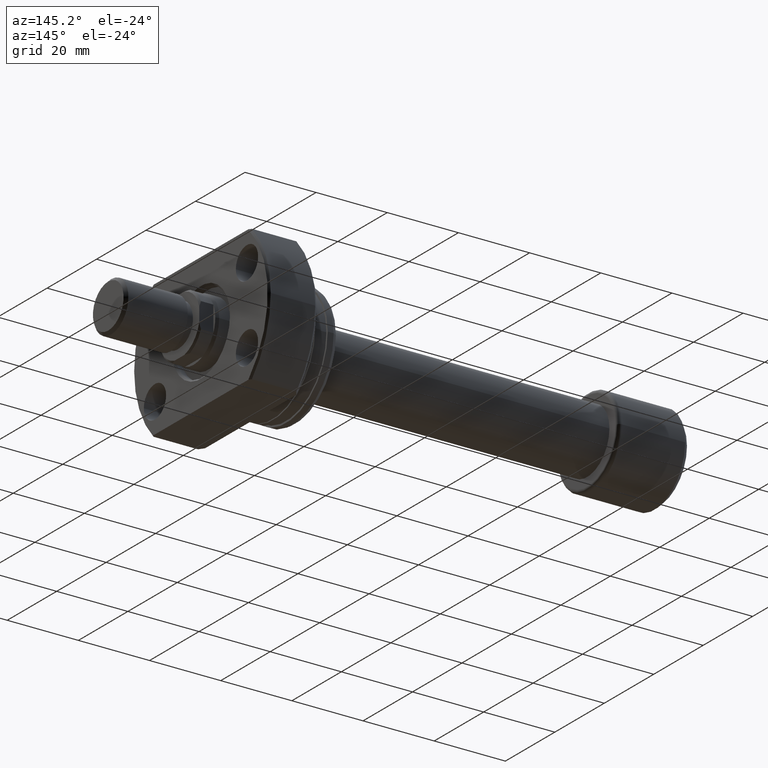
[diagram: clean part render]
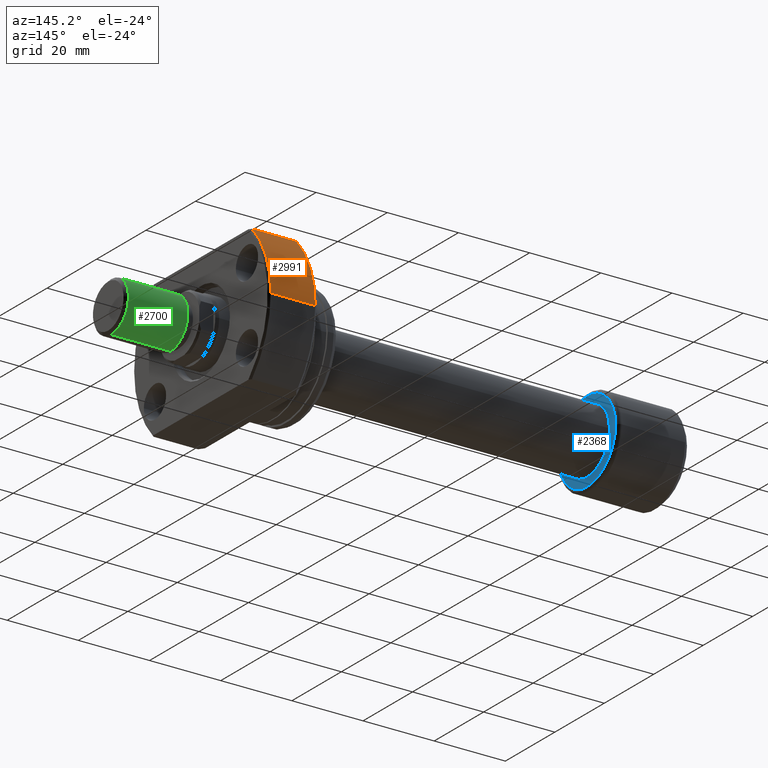
[diagram: same view with three faces highlighted in distinct colors, each labeled with its STEP entity id]
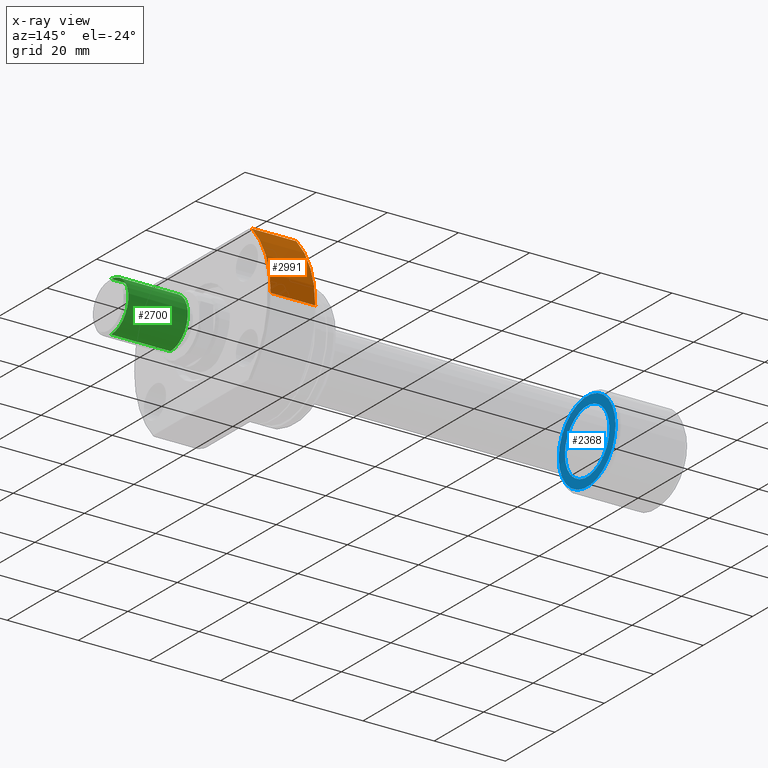
[diagram: x-ray of the same camera — body ghosted, the three highlighted faces saturated]
A machine part, auxiliary view with three faces highlighted in distinct colors.
The next image is the same camera in x-ray (body ghosted, the three faces saturated) — at least one of them is partly hidden behind the body in this view.
Their STEP definitions:

[orange] entity #2991 — the highlighted cylindrical surface (partial cylindrical patch) has radius 27.5 mm, axis along (1, 0, 0).
#273 = EDGE_CURVE ( 'NONE', #625, #2691, #2290, .T. ) ;
#366 = DIRECTION ( 'NONE',  ( 1.000000000000000000, 9.242617352055502386E-18, -0.000000000000000000 ) ) ;
#371 = ORIENTED_EDGE ( 'NONE', *, *, #3605, .F. ) ;
#441 = CARTESIAN_POINT ( 'NONE',  ( 26.50000000000000711, 27.49999999999991473, 0.000000000000000000 ) ) ;
#454 = CARTESIAN_POINT ( 'NONE',  ( 26.00000000000008882, 27.49999999999991473, 0.000000000000000000 ) ) ;
#600 = DIRECTION ( 'NONE',  ( 0.000000000000000000, 1.000000000000000000, 0.000000000000000000 ) ) ;
#625 = VERTEX_POINT ( 'NONE', #2187 ) ;
#673 = CARTESIAN_POINT ( 'NONE',  ( 26.00000000000008882, 2.403080511534438786E-16, 0.000000000000000000 ) ) ;
#798 = CIRCLE ( 'NONE', #1699, 27.49999999999991473 ) ;
#823 = CYLINDRICAL_SURFACE ( 'NONE', #2584, 27.49999999999991473 ) ;
#861 = CARTESIAN_POINT ( 'NONE',  ( 13.49999999999999112, 1.247753342527491952E-16, 0.000000000000000000 ) ) ;
#967 = DIRECTION ( 'NONE',  ( 0.000000000000000000, 1.000000000000000000, 0.000000000000000000 ) ) ;
#1189 = ORIENTED_EDGE ( 'NONE', *, *, #3309, .T. ) ;
#1293 = LINE ( 'NONE', #441, #1398 ) ;
#1398 = VECTOR ( 'NONE', #2111, 1000.000000000000000 ) ;
#1444 = DIRECTION ( 'NONE',  ( 0.000000000000000000, 1.000000000000000000, 0.000000000000000000 ) ) ;
#1490 = VERTEX_POINT ( 'NONE', #2002 ) ;
#1605 = ORIENTED_EDGE ( 'NONE', *, *, #273, .T. ) ;
#1699 = AXIS2_PLACEMENT_3D ( 'NONE', #673, #2146, #967 ) ;
#1715 = FACE_OUTER_BOUND ( 'NONE', #2116, .T. ) ;
#1838 = CARTESIAN_POINT ( 'NONE',  ( 13.49999999999998757, 19.88089535207129188, 19.00000000000000355 ) ) ;
#1917 = ORIENTED_EDGE ( 'NONE', *, *, #2677, .F. ) ;
#2002 = CARTESIAN_POINT ( 'NONE',  ( 26.00000000000007461, 19.88089535207092950, 19.00000000000000355 ) ) ;
#2111 = DIRECTION ( 'NONE',  ( 1.000000000000000000, 9.242617352055502386E-18, -0.000000000000000000 ) ) ;
#2116 = EDGE_LOOP ( 'NONE', ( #371, #1605, #1189, #1917 ) ) ;
#2146 = DIRECTION ( 'NONE',  ( 1.000000000000000000, 9.242617352055502386E-18, -0.000000000000000000 ) ) ;
#2172 = VECTOR ( 'NONE', #3343, 1000.000000000000000 ) ;
#2187 = CARTESIAN_POINT ( 'NONE',  ( 13.49999999999999112, 27.49999999999991473, 0.000000000000000000 ) ) ;
#2197 = CARTESIAN_POINT ( 'NONE',  ( -2.151057110211240797E-13, 19.88089535207167913, 19.00000000000000355 ) ) ;
#2283 = CARTESIAN_POINT ( 'NONE',  ( 26.50000000000000711, 2.449293598294708880E-16, 0.000000000000000000 ) ) ;
#2290 = CIRCLE ( 'NONE', #2537, 27.49999999999991473 ) ;
#2537 = AXIS2_PLACEMENT_3D ( 'NONE', #861, #366, #600 ) ;
#2584 = AXIS2_PLACEMENT_3D ( 'NONE', #2283, #2821, #1444 ) ;
#2677 = EDGE_CURVE ( 'NONE', #2857, #1490, #798, .T. ) ;
#2691 = VERTEX_POINT ( 'NONE', #1838 ) ;
#2821 = DIRECTION ( 'NONE',  ( 1.000000000000000000, 9.242617352055502386E-18, -0.000000000000000000 ) ) ;
#2857 = VERTEX_POINT ( 'NONE', #454 ) ;
#2991 = ADVANCED_FACE ( 'NONE', ( #1715 ), #823, .T. ) ;
#3309 = EDGE_CURVE ( 'NONE', #2691, #1490, #3325, .T. ) ;
#3325 = LINE ( 'NONE', #2197, #2172 ) ;
#3343 = DIRECTION ( 'NONE',  ( 1.000000000000000000, -2.886466111666351885E-14, -0.000000000000000000 ) ) ;
#3605 = EDGE_CURVE ( 'NONE', #625, #2857, #1293, .T. ) ;

[blue] entity #2368 — the highlighted planar face has unit normal (-1, -0, 0).
#307 = CARTESIAN_POINT ( 'NONE',  ( 20.39999999999999503, 11.50000000000000000, 1.469576158976823947E-15 ) ) ;
#331 = AXIS2_PLACEMENT_3D ( 'NONE', #2406, #3274, #715 ) ;
#333 = CIRCLE ( 'NONE', #1998, 9.000000000000000000 ) ;
#438 = EDGE_CURVE ( 'NONE', #3619, #2731, #333, .T. ) ;
#581 = DIRECTION ( 'NONE',  ( 0.000000000000000000, -1.000000000000000000, 0.000000000000000000 ) ) ;
#642 = CARTESIAN_POINT ( 'NONE',  ( 20.39999999999999503, 2.181866337020893623E-16, 0.000000000000000000 ) ) ;
#665 = ORIENTED_EDGE ( 'NONE', *, *, #2094, .F. ) ;
#715 = DIRECTION ( 'NONE',  ( 1.069542322069065801E-17, -1.000000000000000000, 0.000000000000000000 ) ) ;
#778 = ORIENTED_EDGE ( 'NONE', *, *, #2856, .T. ) ;
#856 = DIRECTION ( 'NONE',  ( -1.000000000000000000, -1.069542322069065801E-17, -0.000000000000000000 ) ) ;
#1160 = CIRCLE ( 'NONE', #1813, 11.50000000000000000 ) ;
#1264 = CARTESIAN_POINT ( 'NONE',  ( 20.39999999999999503, 9.000000000000000000, 1.102182119232623630E-15 ) ) ;
#1266 = PLANE ( 'NONE',  #331 ) ;
#1307 = FACE_BOUND ( 'NONE', #1846, .T. ) ;
#1346 = CARTESIAN_POINT ( 'NONE',  ( 20.39999999999999503, 2.181866337020893623E-16, 0.000000000000000000 ) ) ;
#1364 = DIRECTION ( 'NONE',  ( -1.000000000000000000, -1.069542322069065801E-17, -0.000000000000000000 ) ) ;
#1425 = ORIENTED_EDGE ( 'NONE', *, *, #438, .T. ) ;
#1501 = EDGE_LOOP ( 'NONE', ( #1665, #665 ) ) ;
#1552 = FACE_OUTER_BOUND ( 'NONE', #1501, .T. ) ;
#1665 = ORIENTED_EDGE ( 'NONE', *, *, #2625, .F. ) ;
#1714 = VERTEX_POINT ( 'NONE', #2606 ) ;
#1813 = AXIS2_PLACEMENT_3D ( 'NONE', #2848, #856, #3140 ) ;
#1846 = EDGE_LOOP ( 'NONE', ( #1425, #778 ) ) ;
#1873 = CARTESIAN_POINT ( 'NONE',  ( 20.39999999999999503, 2.181866337020893623E-16, 0.000000000000000000 ) ) ;
#1922 = DIRECTION ( 'NONE',  ( 0.000000000000000000, -1.000000000000000000, 0.000000000000000000 ) ) ;
#1940 = AXIS2_PLACEMENT_3D ( 'NONE', #642, #3442, #581 ) ;
#1998 = AXIS2_PLACEMENT_3D ( 'NONE', #1873, #2684, #3013 ) ;
#2094 = EDGE_CURVE ( 'NONE', #3599, #1714, #3076, .T. ) ;
#2165 = CARTESIAN_POINT ( 'NONE',  ( 20.39999999999999503, -9.000000000000000000, 0.000000000000000000 ) ) ;
#2368 = ADVANCED_FACE ( 'NONE', ( #1552, #1307 ), #1266, .F. ) ;
#2406 = CARTESIAN_POINT ( 'NONE',  ( 20.39999999999999503, -9.000000000000000000, 0.000000000000000000 ) ) ;
#2606 = CARTESIAN_POINT ( 'NONE',  ( 20.39999999999999503, -11.50000000000000000, 0.000000000000000000 ) ) ;
#2625 = EDGE_CURVE ( 'NONE', #1714, #3599, #1160, .T. ) ;
#2684 = DIRECTION ( 'NONE',  ( -1.000000000000000000, -1.069542322069065801E-17, -0.000000000000000000 ) ) ;
#2731 = VERTEX_POINT ( 'NONE', #1264 ) ;
#2848 = CARTESIAN_POINT ( 'NONE',  ( 20.39999999999999503, 2.181866337020893623E-16, 0.000000000000000000 ) ) ;
#2856 = EDGE_CURVE ( 'NONE', #2731, #3619, #2890, .T. ) ;
#2890 = CIRCLE ( 'NONE', #3009, 9.000000000000000000 ) ;
#3009 = AXIS2_PLACEMENT_3D ( 'NONE', #1346, #1364, #1922 ) ;
#3013 = DIRECTION ( 'NONE',  ( 0.000000000000000000, -1.000000000000000000, 0.000000000000000000 ) ) ;
#3076 = CIRCLE ( 'NONE', #1940, 11.50000000000000000 ) ;
#3140 = DIRECTION ( 'NONE',  ( 0.000000000000000000, -1.000000000000000000, 0.000000000000000000 ) ) ;
#3274 = DIRECTION ( 'NONE',  ( -1.000000000000000000, -1.069542322069065801E-17, 0.000000000000000000 ) ) ;
#3442 = DIRECTION ( 'NONE',  ( -1.000000000000000000, -1.069542322069065801E-17, -0.000000000000000000 ) ) ;
#3599 = VERTEX_POINT ( 'NONE', #307 ) ;
#3619 = VERTEX_POINT ( 'NONE', #2165 ) ;

[green] entity #2700 — the highlighted cylindrical surface (edge-blend (fillet) strip) has radius 7 mm, axis along (1, 0, -0).
#6 = EDGE_LOOP ( 'NONE', ( #1888, #2841, #2802, #2615 ) ) ;
#70 = CARTESIAN_POINT ( 'NONE',  ( 0.000000000000000000, 0.000000000000000000, 17.50000000000000000 ) ) ;
#115 = EDGE_CURVE ( 'NONE', #502, #2447, #1686, .T. ) ;
#252 = CARTESIAN_POINT ( 'NONE',  ( 7.000000000000000000, 8.572527594031473190E-16, 17.50000000000000000 ) ) ;
#376 = VERTEX_POINT ( 'NONE', #3558 ) ;
#396 = AXIS2_PLACEMENT_3D ( 'NONE', #936, #3218, #421 ) ;
#421 = DIRECTION ( 'NONE',  ( -1.000000000000000000, 0.000000000000000000, 0.000000000000000000 ) ) ;
#502 = VERTEX_POINT ( 'NONE', #1270 ) ;
#707 = EDGE_CURVE ( 'NONE', #1332, #376, #3440, .T. ) ;
#936 = CARTESIAN_POINT ( 'NONE',  ( 0.000000000000000000, 0.000000000000000000, 17.50000000000000000 ) ) ;
#1251 = FACE_OUTER_BOUND ( 'NONE', #6, .T. ) ;
#1270 = CARTESIAN_POINT ( 'NONE',  ( 7.000000000000000000, 8.572527594031473190E-16, 17.50000000000000000 ) ) ;
#1298 = EDGE_CURVE ( 'NONE', #502, #1332, #1781, .T. ) ;
#1314 = CARTESIAN_POINT ( 'NONE',  ( -7.000000000000000000, 0.000000000000000000, 17.50000000000000000 ) ) ;
#1332 = VERTEX_POINT ( 'NONE', #1314 ) ;
#1356 = DIRECTION ( 'NONE',  ( -0.000000000000000000, -0.000000000000000000, -1.000000000000000000 ) ) ;
#1641 = AXIS2_PLACEMENT_3D ( 'NONE', #2367, #2676, #1835 ) ;
#1686 = LINE ( 'NONE', #252, #3257 ) ;
#1770 = CARTESIAN_POINT ( 'NONE',  ( 7.000000000000000000, 8.572527594031473190E-16, 0.7999999999999986011 ) ) ;
#1781 = CIRCLE ( 'NONE', #1845, 7.000000000000000000 ) ;
#1835 = DIRECTION ( 'NONE',  ( 1.000000000000000000, 0.000000000000000000, 0.000000000000000000 ) ) ;
#1845 = AXIS2_PLACEMENT_3D ( 'NONE', #70, #3486, #2670 ) ;
#1888 = ORIENTED_EDGE ( 'NONE', *, *, #1298, .F. ) ;
#1993 = DIRECTION ( 'NONE',  ( -0.000000000000000000, -0.000000000000000000, -1.000000000000000000 ) ) ;
#2367 = CARTESIAN_POINT ( 'NONE',  ( 0.000000000000000000, 0.000000000000000000, 0.7999999999999986011 ) ) ;
#2447 = VERTEX_POINT ( 'NONE', #1770 ) ;
#2529 = CIRCLE ( 'NONE', #1641, 7.000000000000000000 ) ;
#2615 = ORIENTED_EDGE ( 'NONE', *, *, #707, .F. ) ;
#2670 = DIRECTION ( 'NONE',  ( 1.000000000000000000, 0.000000000000000000, 0.000000000000000000 ) ) ;
#2676 = DIRECTION ( 'NONE',  ( -0.000000000000000000, -0.000000000000000000, 1.000000000000000000 ) ) ;
#2700 = ADVANCED_FACE ( 'NONE', ( #1251 ), #3253, .T. ) ;
#2802 = ORIENTED_EDGE ( 'NONE', *, *, #3240, .T. ) ;
#2841 = ORIENTED_EDGE ( 'NONE', *, *, #115, .T. ) ;
#2921 = CARTESIAN_POINT ( 'NONE',  ( -7.000000000000000000, 0.000000000000000000, 17.50000000000000000 ) ) ;
#3218 = DIRECTION ( 'NONE',  ( -0.000000000000000000, -0.000000000000000000, -1.000000000000000000 ) ) ;
#3240 = EDGE_CURVE ( 'NONE', #2447, #376, #2529, .T. ) ;
#3253 = CYLINDRICAL_SURFACE ( 'NONE', #396, 7.000000000000000000 ) ;
#3257 = VECTOR ( 'NONE', #1356, 1000.000000000000000 ) ;
#3262 = VECTOR ( 'NONE', #1993, 1000.000000000000000 ) ;
#3440 = LINE ( 'NONE', #2921, #3262 ) ;
#3486 = DIRECTION ( 'NONE',  ( 0.000000000000000000, 0.000000000000000000, 1.000000000000000000 ) ) ;
#3558 = CARTESIAN_POINT ( 'NONE',  ( -7.000000000000000000, 0.000000000000000000, 0.7999999999999986011 ) ) ;